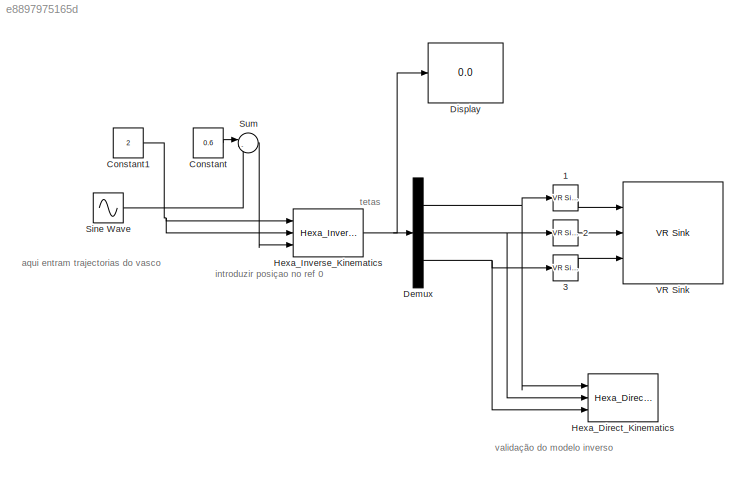
MODEL slx_e8897975165d
KIND model
BLOCK [Reference] 1  REF=vrlib/VR Signal Expander
  Ports = [1, 1]
  SourceBlock = vrlib/VR Signal Expander
  SourceType = VR Signal Expander
  outidx = [4]
  outwidth = 4
BLOCK [Reference] 2  REF=vrlib/VR Signal Expander
  Ports = [1, 1]
  SourceBlock = vrlib/VR Signal Expander
  SourceType = VR Signal Expander
  outidx = [4]
  outwidth = 4
BLOCK [Reference] 3  REF=vrlib/VR Signal Expander
  Ports = [1, 1]
  SourceBlock = vrlib/VR Signal Expander
  SourceType = VR Signal Expander
  outidx = [4]
  outwidth = 4
BLOCK [Constant] Constant
  Value = 0.6
BLOCK [Constant] Constant1
  Value = 2
BLOCK [Demux] Demux
  DisplayOption = bar
  Outputs = 3
  Ports = [1, 3]
BLOCK [Display] Display
  Decimation = 1
  Ports = [1]
BLOCK [Reference] Hexa_Direct_Kinematics  REF=DirectK_Lib/Hexa_Direct_Kinematics
  Ports = [3, 1]
  SourceBlock = DirectK_Lib/Hexa_Direct_Kinematics
  SourceType = SubSystem
BLOCK [Reference] Hexa_Inverse_Kinematics  REF=InverseK_Lib/Hexa_Inverse_Kinematics
  Ports = [3, 1]
  SourceBlock = InverseK_Lib/Hexa_Inverse_Kinematics
  SourceType = SubSystem
BLOCK [Sin] Sine Wave
  Amplitude = 0.3
  Frequency = 0.7
  Ports = [0, 1]
  SampleTime = 0
BLOCK [Sum] Sum
  IconShape = round
  InputSameDT = off
  Inputs = |-+
  OutDataTypeStr = Inherit: Inherit via internal rule
  Ports = [2, 1]
  SaturateOnIntegerOverflow = off
BLOCK [Reference] VR Sink  REF=vrlib/VR Sink
  AllowVariableSize = off
  AutoView = off
  FieldsWritten = shoulder1transform.rotation.4.1.1.double#Arm1Transform.rotation.4.1.1.double#leg1trasnform.rotation.4.1.1.double
  InstantiateOnLoad = on
  Ports = [3]
  RemoteChange = off
  RemoteView = off
  SampleTime = 0.1
  SourceBlock = vrlib/VR Sink
  SourceType = Virtual Reality Sink
  VideoDimensions = []
  ViewEnable = on
  WorldFileName = <userpath>\Google Drive\Projectos HS\Hexapod\Robotics\VW\vw_old.wrl
ANNOTATION (root): aqui entram trajectorias do vasco
ANNOTATION (root): introduzir posiçao no ref 0
ANNOTATION (root): tetas
ANNOTATION (root): validação do modelo inverso
LINE 1:1 -> VR Sink:1
LINE 2:1 -> VR Sink:2
LINE 3:1 -> VR Sink:3
NET Constant1:1 -> Hexa_Inverse_Kinematics:1, Hexa_Inverse_Kinematics:2
LINE Constant:1 -> Sum:1
NET Demux:1 -> 1:1, Hexa_Direct_Kinematics:1
NET Demux:2 -> 2:1, Hexa_Direct_Kinematics:2
NET Demux:3 -> 3:1, Hexa_Direct_Kinematics:3
NET Hexa_Inverse_Kinematics:1 -> Demux:1, Display:1
LINE Sine Wave:1 -> Sum:2
LINE Sum:1 -> Hexa_Inverse_Kinematics:3
note: NET lines group one-source signal fan-out (src -> all destinations, sorted); 1:1 wires keep LINE
